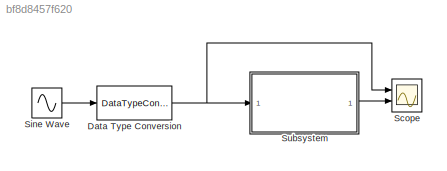
MODEL slx_bf8d8457f620
KIND model
CONFIG AbsTol = auto
CONFIG FixedStep = auto
CONFIG MaxStep = auto
CONFIG MinStep = auto
CONFIG RelTol = 1e-3
CONFIG SampleTimeConstraint = Unconstrained
CONFIG Solver = ode45
CONFIG SolverMode = Auto
CONFIG SolverName = ode45
CONFIG StartTime = 0.0
CONFIG StopTime = 10
BLOCK [DataTypeConversion] Data Type Conversion
  OutDataTypeStr = fixdt(1,16,14)
  RndMeth = Floor
  SaturateOnIntegerOverflow = off
BLOCK [Scope] Scope
  NumInputPorts = 2
  Ports = [2]
  ScopeSpecificationString = Simulink.scopes.TimeScopeBlockCfg('CurrentConfiguration', extmgr.ConfigurationSet(extmgr.Configuration('Core','General UI',true),extmgr.Configuration('Core','Source UI',true),extmgr.Configuration('Sources','WiredSimulink',true,'DataLoggingSaveFormat','StructureWithTime','DataLoggingDecimation','1','DataLoggingDecimateData',true),extmgr.Configuration('Visuals','Time Domain',true,'SerializedDisplays...<+2394ch>
BLOCK [Sin] Sine Wave
  Bias = -1
  Ports = [0, 1]
  SampleTime = 1/1000
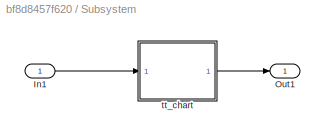
BLOCK [SubSystem] Subsystem
  Ports = [1, 1]
  RequestExecContextInheritance = off
  Variant = off
BLOCK [Inport] Subsystem/In1
  IconDisplay = Port number
BLOCK [Outport] Subsystem/Out1
  IconDisplay = Port number
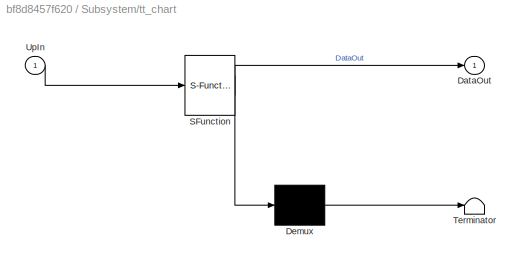
BLOCK [SubSystem] Subsystem/tt_chart
  ErrorFcn = Stateflow.Translate.translate
  PermitHierarchicalResolution = ExplicitOnly
  Ports = [1, 1]
  RequestExecContextInheritance = off
  SFBlockType = Chart
  TreatAsAtomicUnit = on
  Variant = off
BLOCK [Demux] Subsystem/tt_chart/ Demux 
  Outputs = 1
  Ports = [1, 1]
BLOCK [S-Function] Subsystem/tt_chart/ SFunction 
  EnableBusSupport = on
  FunctionName = sf_sfun
  PortCounts = [1 2]
  Ports = [1, 2]
  SFunctionDeploymentMode = off
  Tag = Stateflow S-Function sf_ttable 2
BLOCK [Terminator] Subsystem/tt_chart/ Terminator 
BLOCK [Outport] Subsystem/tt_chart/DataOut
  IconDisplay = Port number
BLOCK [Inport] Subsystem/tt_chart/UpIn
  IconDisplay = Port number
NET Data Type Conversion:1 -> Scope:1, Subsystem:1
LINE Sine Wave:1 -> Data Type Conversion:1
LINE Subsystem/In1:1 -> Subsystem/tt_chart:1
LINE Subsystem/tt_chart:1 -> Subsystem/Out1:1
LINE Subsystem:1 -> Scope:2
note: NET lines group one-source signal fan-out (src -> all destinations, sorted); 1:1 wires keep LINE
CHART Subsystem/tt_chart states=1 transitions=19
  STATE_LABEL 'out = inc_data(in)'
  STATE_LABEL '{\n/* Positive */\naVarTruthTableCondition_1 = (in>1);\n}'
  STATE_LABEL '{\n/* Negative */\naVarTruthTableCondition_2 = ((in>0)&&(in<=1));\n}'
  STATE_LABEL '{\n/* zero */\naVarTruthTableCondition_3 = ((in<=0)&&(in>-1));\n}'
  STATE_LABEL '[!aVarTruthTableCondition_1 && !aVarTruthTableCondition_2 && aVarTruthTableCondition_3]'
  STATE_LABEL "{\n/* 'A1':D1 */\nout = 100\n}"
  STATE_LABEL '[!aVarTruthTableCondition_1 && aVarTruthTableCondition_2 && !aVarTruthTableCondition_3]'
  STATE_LABEL "{\n/* 'A2':D2 */\nout = 10\n}"
  STATE_LABEL '[aVarTruthTableCondition_1 && !aVarTruthTableCondition_2 && !aVarTruthTableCondition_3]'
  STATE_LABEL "{\n/* 'A3':D3 */\nout = 0\n}"
  STATE_LABEL '[!aVarTruthTableCondition_1 && !aVarTruthTableCondition_2 && !aVarTruthTableCondition_3]'
  STATE_LABEL "{\n/* 'A4':Else */\nout = -100\n}"
  STATE_LABEL '/* Default */'
  STATE_LABEL "{\n/* 'A4':Else */\nout = -100\n}"
